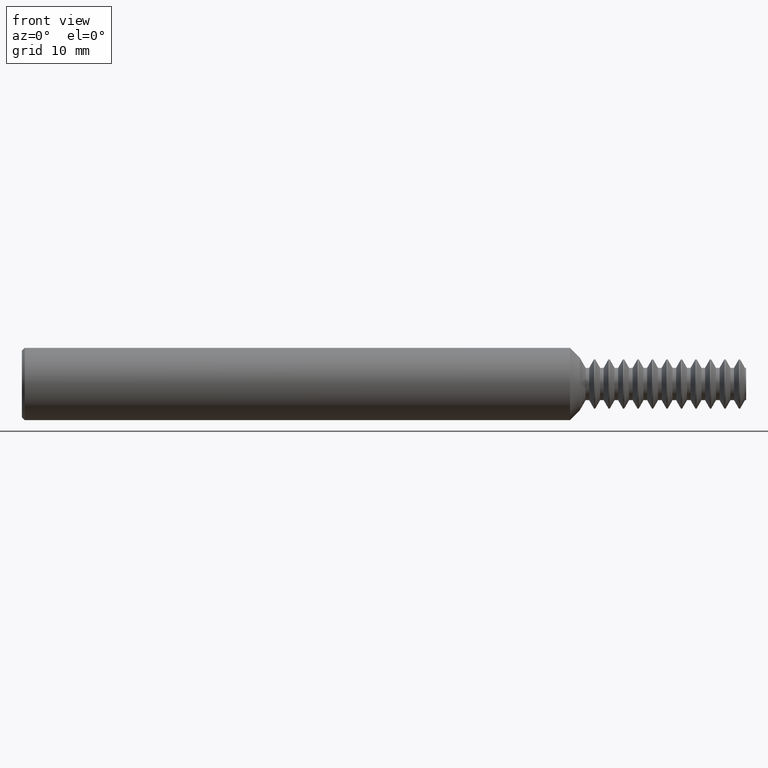
[diagram: clean part render]
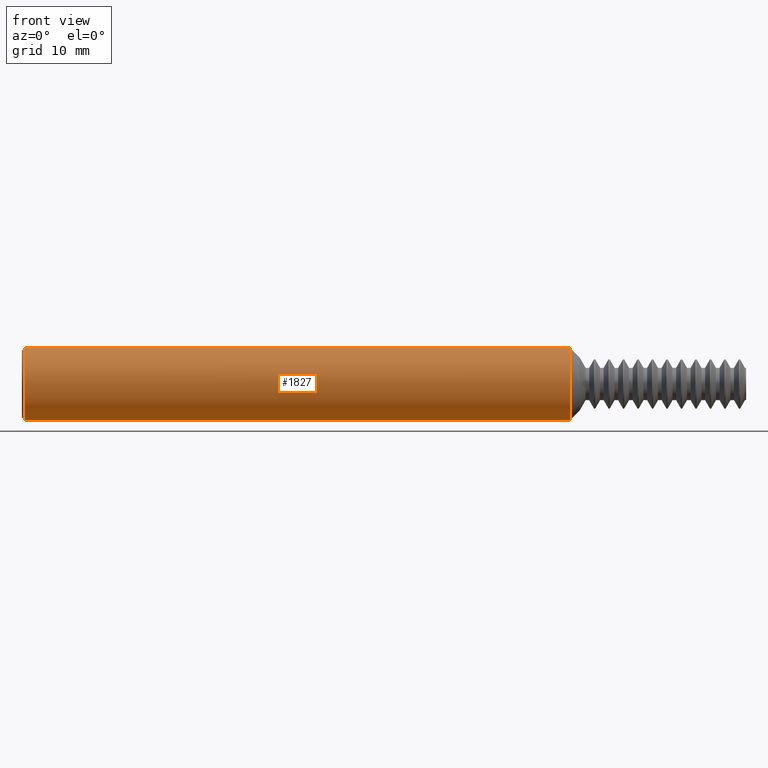
[diagram: same view with one face highlighted and labeled with its STEP entity id]
A machine part, front view. The second image highlights one B-rep face of the part: STEP entity #1827.
In plain terms, the highlighted cylindrical surface (edge-blend (fillet) strip) has radius 3.1712 mm, axis along (-1, -0, -0).
Its self-contained STEP definition (entity closure, byte-faithful):
#121 = DIRECTION ( 'NONE',  ( 0.000000000000000000, 0.000000000000000000, -1.000000000000000000 ) ) ;
#131 = DIRECTION ( 'NONE',  ( -1.000000000000000000, -0.000000000000000000, -0.000000000000000000 ) ) ;
#179 = VERTEX_POINT ( 'NONE', #813 ) ;
#217 = EDGE_CURVE ( 'NONE', #921, #179, #280, .T. ) ;
#280 = CIRCLE ( 'NONE', #1201, 0.1248500000000000026 ) ;
#291 = DIRECTION ( 'NONE',  ( 1.000000000000000000, 0.000000000000000000, 0.000000000000000000 ) ) ;
#294 = EDGE_CURVE ( 'NONE', #1546, #1294, #2482, .T. ) ;
#493 = CARTESIAN_POINT ( 'NONE',  ( 0.000000000000000000, 0.000000000000000000, 0.000000000000000000 ) ) ;
#526 = AXIS2_PLACEMENT_3D ( 'NONE', #1912, #131, #926 ) ;
#553 = CARTESIAN_POINT ( 'NONE',  ( 1.892150000000000221, 1.528971528735470422E-17, -0.1248500000000000026 ) ) ;
#626 = ORIENTED_EDGE ( 'NONE', *, *, #1494, .T. ) ;
#813 = CARTESIAN_POINT ( 'NONE',  ( 0.009999999999999620304, 0.000000000000000000, -0.1248500000000000026 ) ) ;
#921 = VERTEX_POINT ( 'NONE', #1881 ) ;
#925 = CARTESIAN_POINT ( 'NONE',  ( 1.892150000000000221, 0.000000000000000000, 0.1248500000000000026 ) ) ;
#926 = DIRECTION ( 'NONE',  ( 0.000000000000000000, 0.000000000000000000, 1.000000000000000000 ) ) ;
#1006 = EDGE_CURVE ( 'NONE', #1546, #179, #2371, .T. ) ;
#1107 = DIRECTION ( 'NONE',  ( -1.000000000000000000, -0.000000000000000000, -0.000000000000000000 ) ) ;
#1168 = LINE ( 'NONE', #1583, #2411 ) ;
#1201 = AXIS2_PLACEMENT_3D ( 'NONE', #1214, #291, #121 ) ;
#1214 = CARTESIAN_POINT ( 'NONE',  ( 0.009999999999999620304, 0.000000000000000000, 0.000000000000000000 ) ) ;
#1269 = ORIENTED_EDGE ( 'NONE', *, *, #217, .T. ) ;
#1294 = VERTEX_POINT ( 'NONE', #925 ) ;
#1299 = DIRECTION ( 'NONE',  ( 0.000000000000000000, 0.000000000000000000, 1.000000000000000000 ) ) ;
#1304 = ORIENTED_EDGE ( 'NONE', *, *, #1006, .F. ) ;
#1390 = CARTESIAN_POINT ( 'NONE',  ( 0.000000000000000000, 1.528971528735470422E-17, -0.1248500000000000026 ) ) ;
#1396 = DIRECTION ( 'NONE',  ( -1.000000000000000000, -0.000000000000000000, -0.000000000000000000 ) ) ;
#1494 = EDGE_CURVE ( 'NONE', #1294, #921, #1168, .T. ) ;
#1546 = VERTEX_POINT ( 'NONE', #553 ) ;
#1583 = CARTESIAN_POINT ( 'NONE',  ( 0.000000000000000000, 0.000000000000000000, 0.1248500000000000026 ) ) ;
#1764 = VECTOR ( 'NONE', #2416, 39.37007874015748143 ) ;
#1827 = ADVANCED_FACE ( 'NONE', ( #2323 ), #1919, .T. ) ;
#1881 = CARTESIAN_POINT ( 'NONE',  ( 0.009999999999999620304, 1.528971528735470422E-17, 0.1248500000000000026 ) ) ;
#1912 = CARTESIAN_POINT ( 'NONE',  ( 1.892150000000000221, 0.000000000000000000, 0.000000000000000000 ) ) ;
#1919 = CYLINDRICAL_SURFACE ( 'NONE', #1943, 0.1248500000000000026 ) ;
#1943 = AXIS2_PLACEMENT_3D ( 'NONE', #493, #1107, #1299 ) ;
#1944 = ORIENTED_EDGE ( 'NONE', *, *, #294, .T. ) ;
#2115 = EDGE_LOOP ( 'NONE', ( #1304, #1944, #626, #1269 ) ) ;
#2323 = FACE_OUTER_BOUND ( 'NONE', #2115, .T. ) ;
#2371 = LINE ( 'NONE', #1390, #1764 ) ;
#2411 = VECTOR ( 'NONE', #1396, 39.37007874015748143 ) ;
#2416 = DIRECTION ( 'NONE',  ( -1.000000000000000000, -0.000000000000000000, -0.000000000000000000 ) ) ;
#2482 = CIRCLE ( 'NONE', #526, 0.1248500000000000026 ) ;